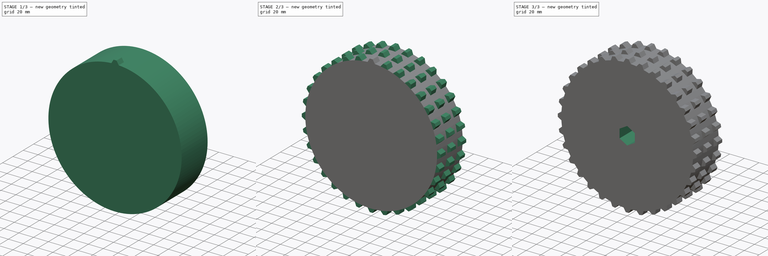
[diagram: build sequence overview — one tinted view per stage of 3, left to right]
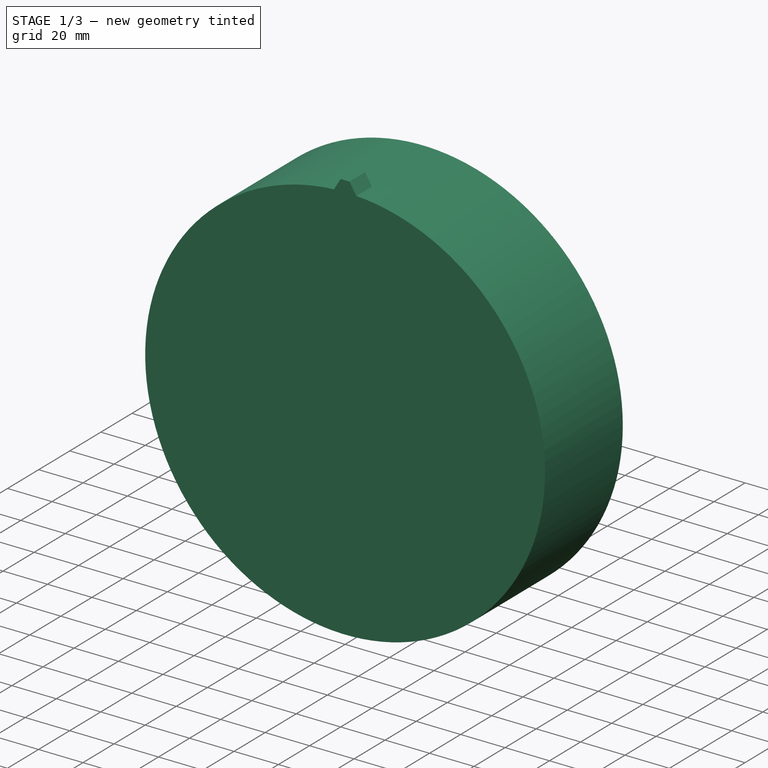
[diagram: stage 1 of 3 — iso view after this stage's code; geometry added in this stage tinted green]
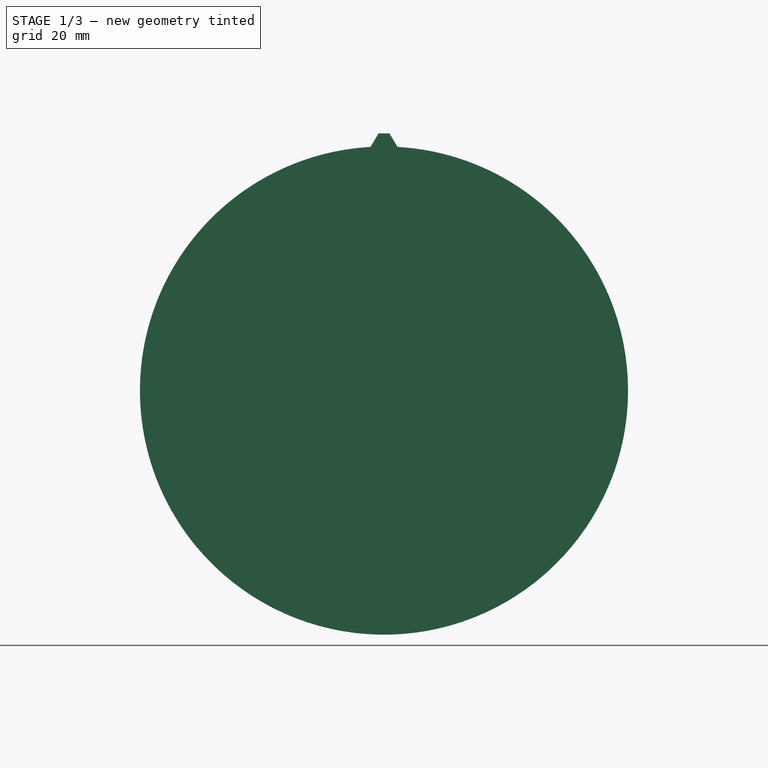
[diagram: stage 1 of 3 — front view after this stage's code; geometry added in this stage tinted green]
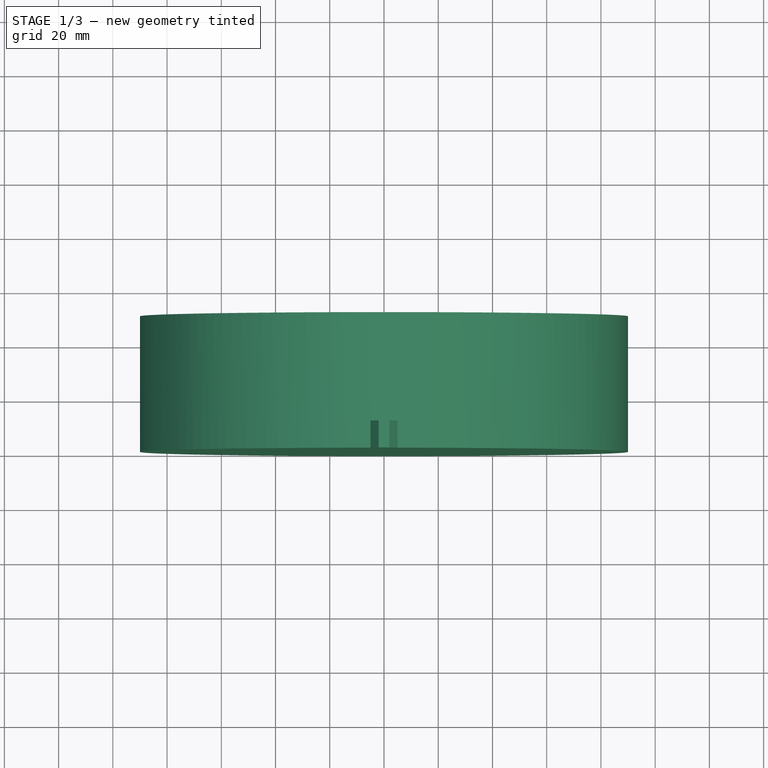
[diagram: stage 1 of 3 — top view after this stage's code; geometry added in this stage tinted green]
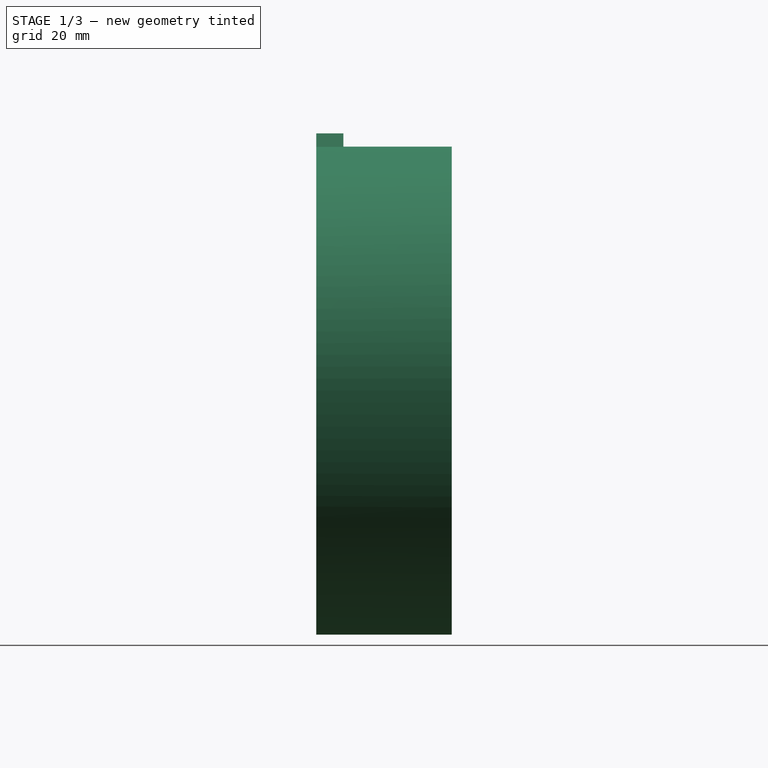
[diagram: stage 1 of 3 — right view after this stage's code; geometry added in this stage tinted green]
FCSTD DOCUMENT  (FreeCAD 0.18R16146 (Git))
Label: wheel copy
License: All rights reserved
LicenseURL: http://en.wikipedia.org/wiki/All_rights_reserved
objects: Sketcher::SketchObject×5, PartDesign::Pocket×3, PartDesign::PolarPattern×2, PartDesign::Revolution×1, PartDesign::Pad×1, PartDesign::LinearPattern×1, PartDesign::MultiTransform×1, PartDesign::Body×1
note: 20 computed .brp shape members not serialized (recipe doc carries the construction recipe); baked Part::Feature solids carry a one-line shape summary decoded from their .brp

FEATURE [Sketcher::SketchObject] Sketch
  MapMode = 5
  Support = -> [XY_Plane]
  sketch-geometry (4):
    g0: LineSegment StartX=0 StartY=0 StartZ=0 EndX=90 EndY=0 EndZ=0
    g1: LineSegment StartX=90 StartY=0 StartZ=0 EndX=90 EndY=50 EndZ=0
    g2: LineSegment StartX=90 StartY=50 StartZ=0 EndX=0 EndY=50 EndZ=0
    g3: LineSegment StartX=0 StartY=50 StartZ=0 EndX=0 EndY=0 EndZ=0
  constraints (11):
    c: Coincident(g0,g1)
    c: Coincident(g1,g2)
    c: Coincident(g2,g3)
    c: Coincident(g3,g0)
    c: Horizontal(g0)
    c: Horizontal(g2)
    c: Vertical(g1)
    c: Vertical(g3)
    c: Coincident(g0,g-1)
    c: DistanceX(g2,g2) = 90
    c: DistanceY(g3,g3) = 50
FEATURE [PartDesign::Revolution] Revolution
  Angle = 360
  Axis = (1e-16,1,-1e-16)
  Base = (0,0,0)
  Profile = -> Sketch
  ReferenceAxis = -> Y_Axis
  Reversed = true
FEATURE [Sketcher::SketchObject] Sketch001
  ExternalGeometry = -> [Revolution]
  MapMode = 5
  Placement = pos=(0,0,0) rot=(1,0,0;1.5708rad)
  Support = -> [Revolution]
  sketch-geometry (7):
    g0: LineSegment StartX=-5 StartY=86.861 StartZ=0 EndX=-5 EndY=89.861 EndZ=0
    g1: LineSegment StartX=-5 StartY=89.861 StartZ=0 EndX=-2 EndY=94.861 EndZ=0
    g2: LineSegment StartX=-2 StartY=94.861 StartZ=0 EndX=2 EndY=94.861 EndZ=0
    g3: LineSegment StartX=2 StartY=94.861 StartZ=0 EndX=5 EndY=89.861 EndZ=0
    g4: LineSegment StartX=5 StartY=89.861 StartZ=0 EndX=5 EndY=86.861 EndZ=0
    g5: LineSegment StartX=5 StartY=86.861 StartZ=0 EndX=-5 EndY=86.861 EndZ=0
    g6: LineSegment [constr] StartX=-5 StartY=89.861 StartZ=0 EndX=5 EndY=89.861 EndZ=0
  constraints (18):
    c: Coincident(g0,g1)
    c: Coincident(g1,g2)
    c: Coincident(g2,g3)
    c: Coincident(g3,g4)
    c: Coincident(g4,g5)
    c: Coincident(g5,g0)
    c: PointOnObject(g0,g-3)
    c: PointOnObject(g3,g-3)
    c: Distance(g6) = 10
    c: Coincident(g3,g6)
    c: Coincident(g0,g6)
    c: Parallel(g2,g6)
    c: Distance(g2) = 4
    c: Equal(g5,g6)
    c: Symmetric(g0,g4,g-2)
    c: Symmetric(g1,g2,g-2)
    c: DistanceY(g0,g1) = 5
    c: DistanceY(g0,g0) = 3
FEATURE [PartDesign::Pad] Pad
  BaseFeature = -> Revolution
  Length = 10
  Length2 = 100
  Profile = -> Sketch001
  Reversed = true
  Type = 0
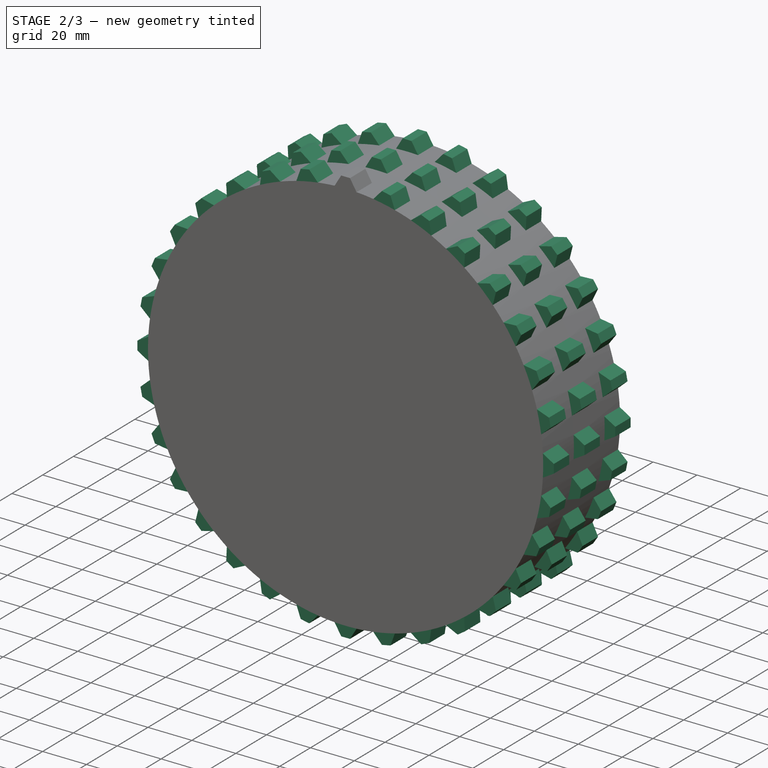
[diagram: stage 2 of 3 — iso view after this stage's code; geometry added in this stage tinted green]
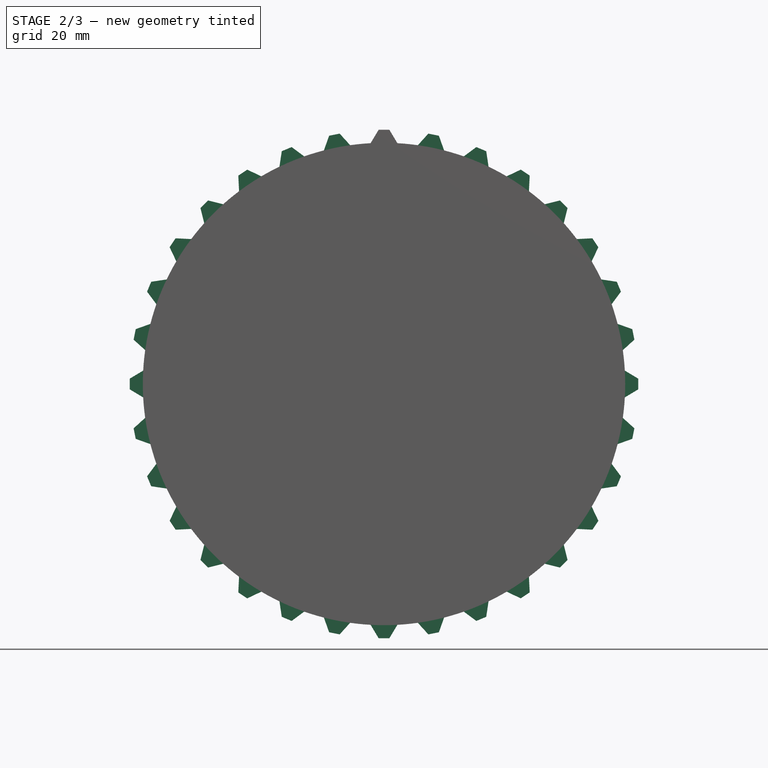
[diagram: stage 2 of 3 — front view after this stage's code; geometry added in this stage tinted green]
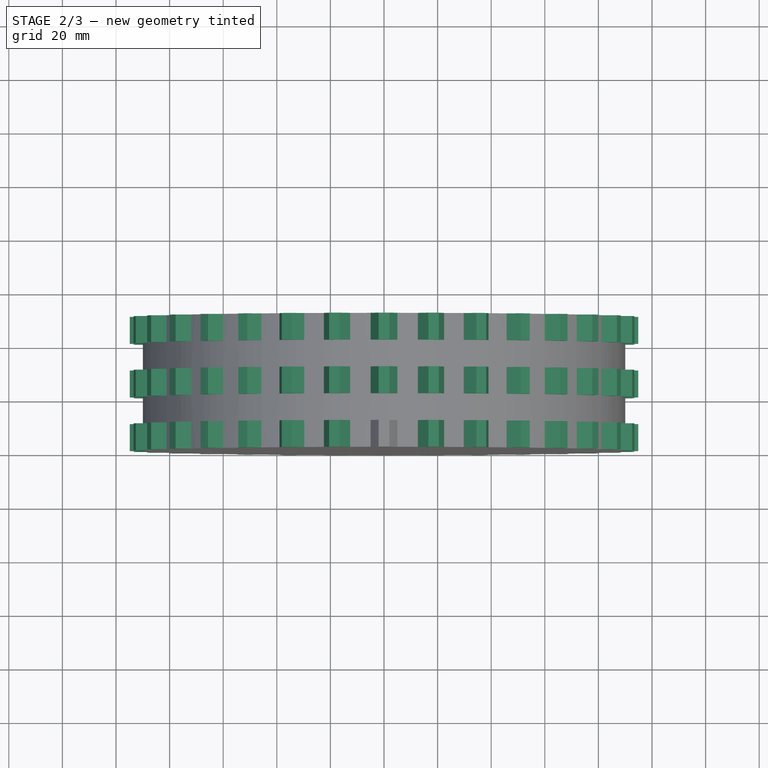
[diagram: stage 2 of 3 — top view after this stage's code; geometry added in this stage tinted green]
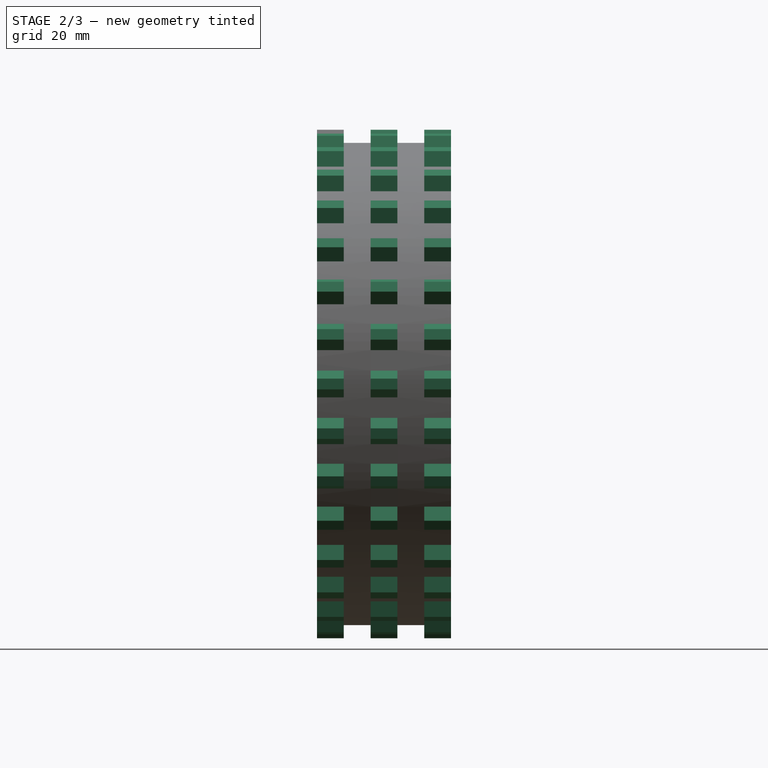
[diagram: stage 2 of 3 — right view after this stage's code; geometry added in this stage tinted green]
FEATURE [PartDesign::PolarPattern] PolarPattern
  Angle = 360
  Axis = -> Sketch001 [N_Axis]
  Occurrences = 32
FEATURE [PartDesign::LinearPattern] LinearPattern
  Direction = -> Y_Axis
  Length = 40
  Occurrences = 3
FEATURE [PartDesign::MultiTransform] MultiTransform
  BaseFeature = -> Pad
  Originals = -> [Pad]
  Transformations = -> [PolarPattern,LinearPattern]
FEATURE [Sketcher::SketchObject] Sketch003  label="felghull"
  MapMode = 5
  Placement = pos=(6e-15,50,-6e-15) rot=(0,0.707107,0.707107;3.14159rad)
  sketch-geometry (4):
    g0: ArcOfCircle CenterX=0 CenterY=0 CenterZ=0 NormalX=0 NormalY=0 NormalZ=1 AngleXU=0 Radius=70 StartAngle=1.09083 EndAngle=2.05076
    g1: ArcOfCircle CenterX=0 CenterY=0 CenterZ=0 NormalX=0 NormalY=0 NormalZ=1 AngleXU=0 Radius=20 StartAngle=1.09083 EndAngle=2.05076
    g2: LineSegment StartX=-32.3224 StartY=62.0908 StartZ=0 EndX=-9.23497 EndY=17.7402 EndZ=0
    g3: LineSegment StartX=9.23497 StartY=17.7402 StartZ=0 EndX=32.3224 EndY=62.0908 EndZ=0
  constraints (13):
    c: Coincident(g1,g-1)
    c: Coincident(g0,g1)
    c: Coincident(g0,g3)
    c: Coincident(g1,g3)
    c: Coincident(g1,g2)
    c: Coincident(g0,g2)
    c: Equal(g3,g2)
    c: Radius(g0) = 70
    c: Radius(g1) = 20
    c: Angle(g1) = 0.959931
    c: Angle(g0) = 0.959931
    c: Symmetric(g0,g0,g-2)
    c: Symmetric(g1,g1,g-2)
FEATURE [PartDesign::Pocket] Pocket
  BaseFeature = -> MultiTransform
  Length = 45
  Length2 = 100
  Profile = -> Sketch003
  Type = 0
FEATURE [PartDesign::PolarPattern] PolarPattern001
  Angle = 360
  Axis = -> Sketch003 [N_Axis]
  BaseFeature = -> Pocket
  Occurrences = 5
  Originals = -> [Pocket]
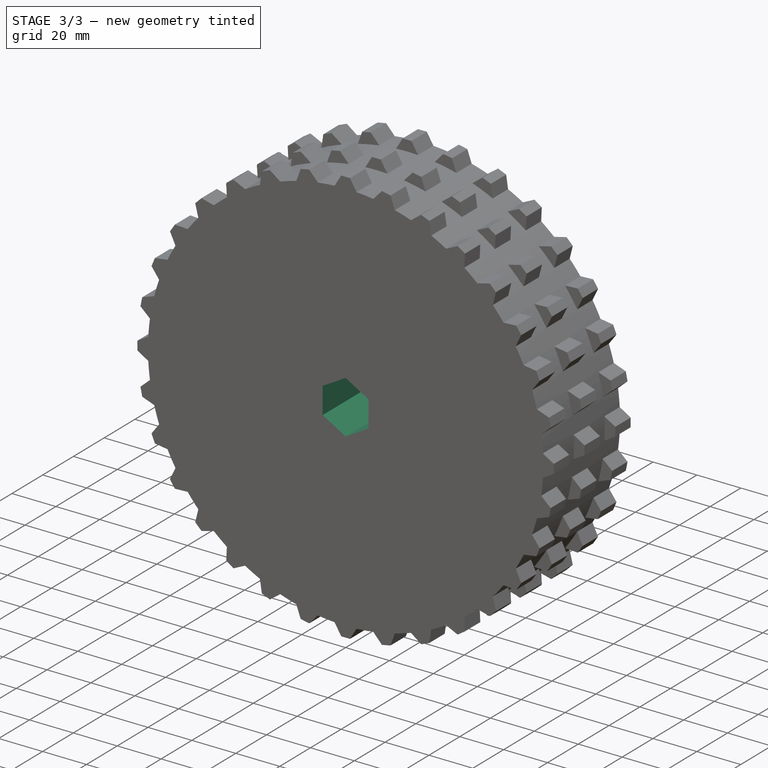
[diagram: stage 3 of 3 — iso view after this stage's code; geometry added in this stage tinted green]
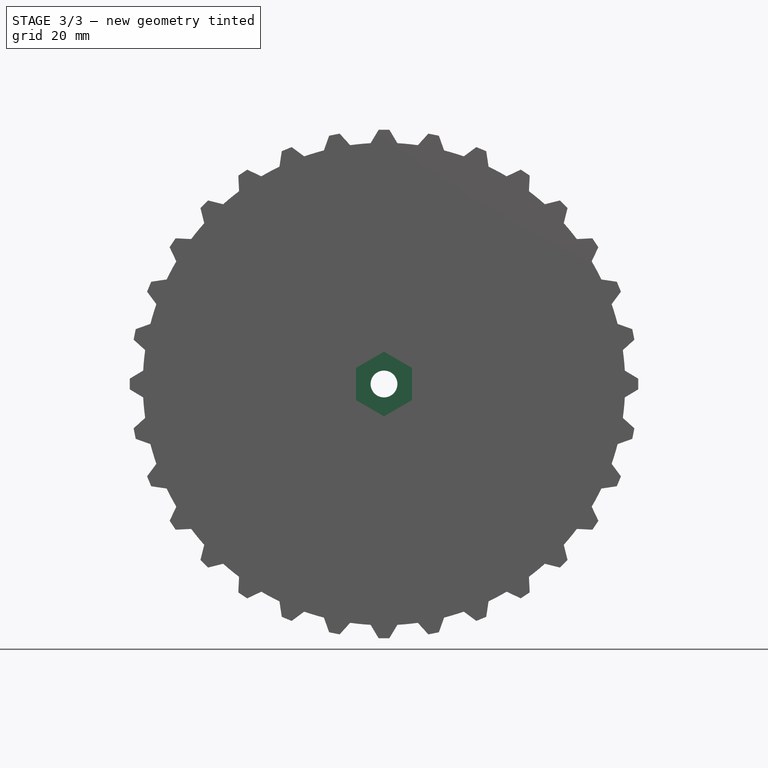
[diagram: stage 3 of 3 — front view after this stage's code; geometry added in this stage tinted green]
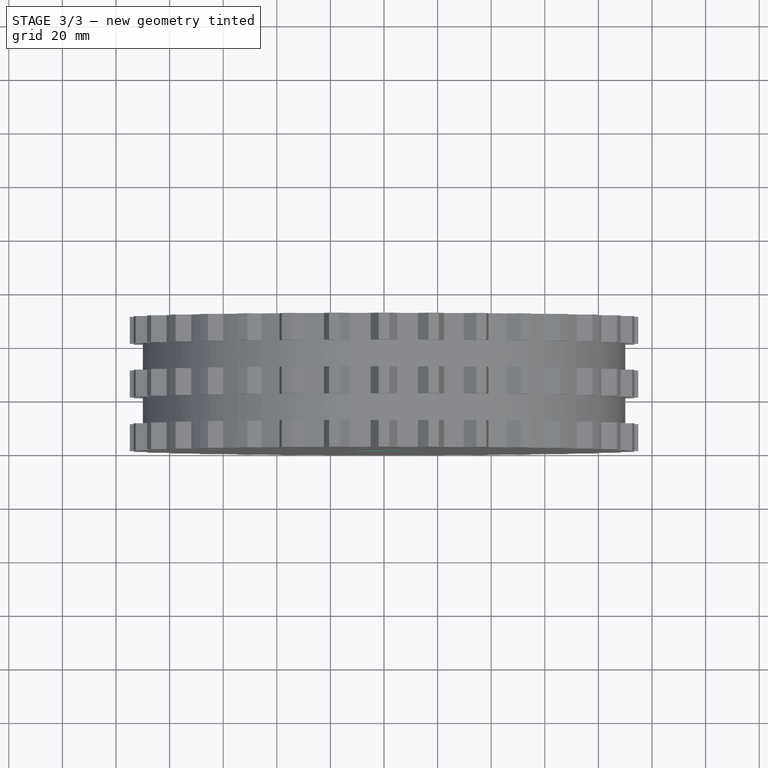
[diagram: stage 3 of 3 — top view after this stage's code; geometry added in this stage tinted green]
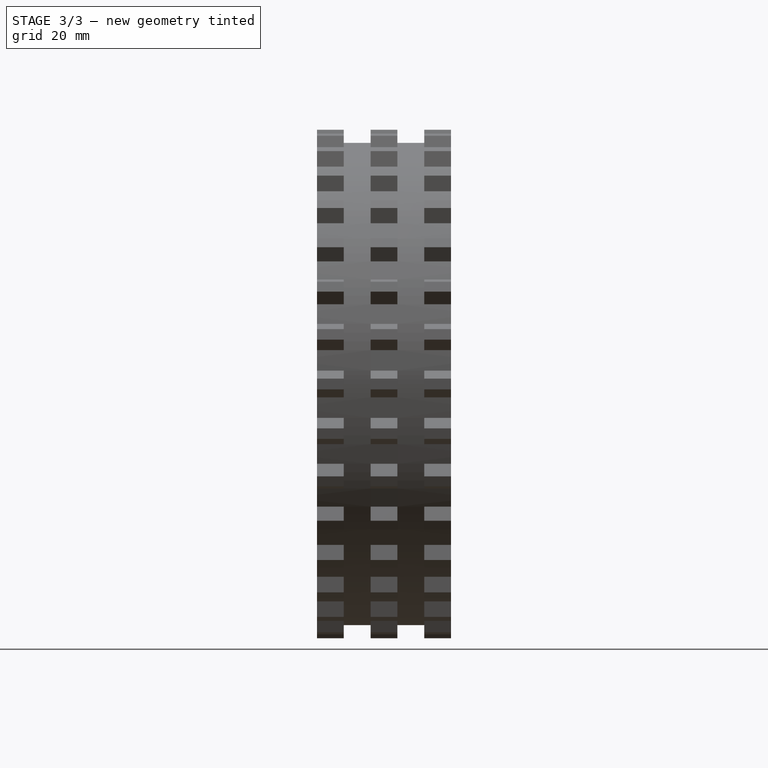
[diagram: stage 3 of 3 — right view after this stage's code; geometry added in this stage tinted green]
FEATURE [Sketcher::SketchObject] CopySketch004
  Placement = pos=(0,0,0) rot=(1,0,0;1.5708rad)
  sketch-geometry (7):
    g0: LineSegment StartX=-1.8e-15 StartY=12.05 StartZ=0 EndX=-10.4356 EndY=6.025 EndZ=0
    g1: LineSegment StartX=-10.4356 StartY=6.025 StartZ=0 EndX=-10.4356 EndY=-6.025 EndZ=0
    g2: LineSegment StartX=-10.4356 StartY=-6.025 StartZ=0 EndX=0 EndY=-12.05 EndZ=0
    g3: LineSegment StartX=0 StartY=-12.05 StartZ=0 EndX=10.4356 EndY=-6.025 EndZ=0
    g4: LineSegment StartX=10.4356 StartY=-6.025 StartZ=0 EndX=10.4356 EndY=6.025 EndZ=0
    g5: LineSegment StartX=10.4356 StartY=6.025 StartZ=0 EndX=-1.8e-15 EndY=12.05 EndZ=0
    g6: Circle [constr] CenterX=0 CenterY=0 CenterZ=0 NormalX=0 NormalY=0 NormalZ=1 AngleXU=0 Radius=12.05
  constraints (16):
    c: Coincident(g0,g1)
    c: Coincident(g1,g2)
    c: Coincident(g2,g3)
    c: Coincident(g3,g4)
    c: Coincident(g4,g5)
    c: Coincident(g5,g0)
    c: Equal(g0, g1-g5) x5
    c: PointOnObject(g0,g6)
    c: PointOnObject(g1,g6)
    c: PointOnObject(g2,g6)
    c: PointOnObject(g3,g6)
    c: PointOnObject(g4,g6)
    c: PointOnObject(g5,g6)
    c: Coincident(g6,g-1)
    c: Distance(g-1,g0) = 12.05
    c: Vertical(g4)
FEATURE [PartDesign::Pocket] Pocket001  label="hex-hull"
  BaseFeature = -> PolarPattern001
  Length = 40
  Length2 = 100
  Profile = -> CopySketch004
  Type = 0
FEATURE [Sketcher::SketchObject] Sketch004
  MapMode = 5
  Placement = pos=(5.6e-15,50,-5.6e-15) rot=(0,0.707107,0.707107;3.14159rad)
  Support = -> [Pocket001]
  sketch-geometry (1):
    g0: Circle CenterX=0 CenterY=0 CenterZ=0 NormalX=0 NormalY=0 NormalZ=1 AngleXU=0 Radius=5
  constraints (2):
    c: Coincident(g0,g-1)
    c: Radius(g0) = 5
FEATURE [PartDesign::Pocket] Pocket002  label="skruehull"
  BaseFeature = -> Pocket001
  Length = 5
  Length2 = 100
  Profile = -> Sketch004
  Type = 1
FEATURE [PartDesign::Body] Body  label="wheel"
  Group = -> [Sketch,Revolution,Sketch001,Pad,MultiTransform,PolarPattern,LinearPattern,Sketch003,Pocket,PolarPattern001,Pocket001,CopySketch004,Sketch004,Pocket002]
  Origin = -> Origin
  Placement = pos=(0,0,0) rot=(0,1,0;0.523599rad)
  Tip = -> Pocket002
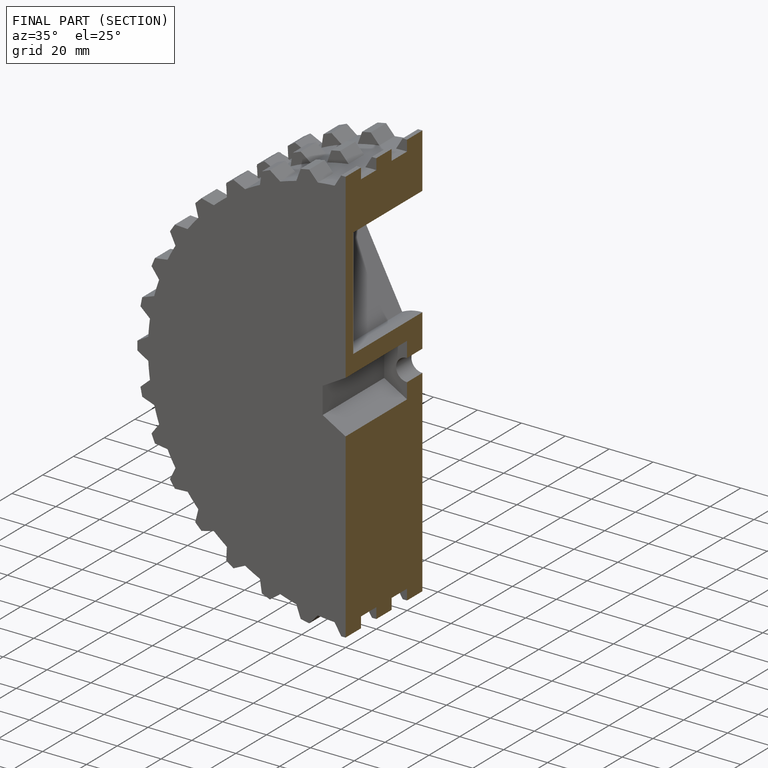
[diagram: finished part — half-section view (interior)]
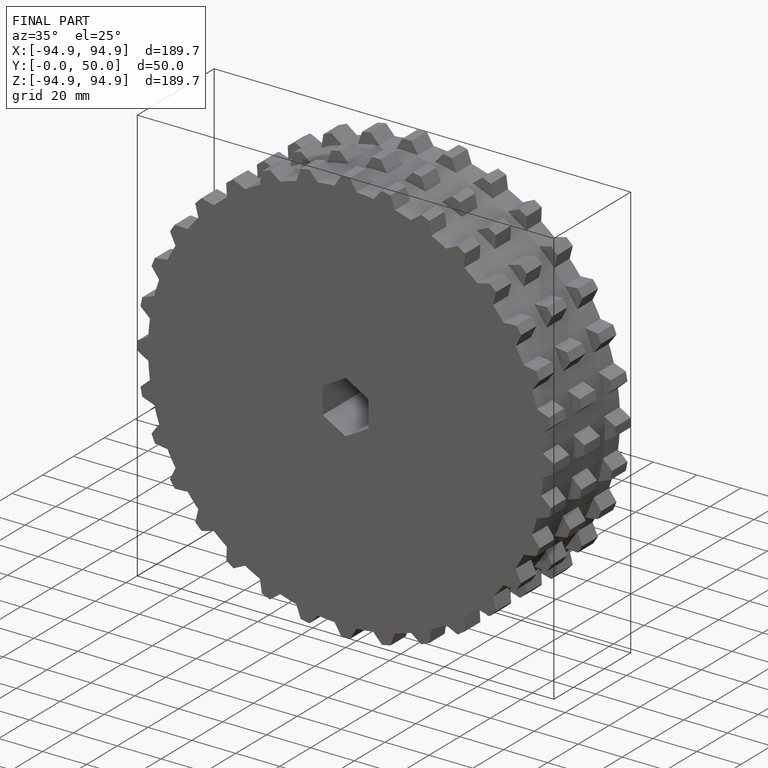
[diagram: finished part — iso view with bounding-box wireframe]
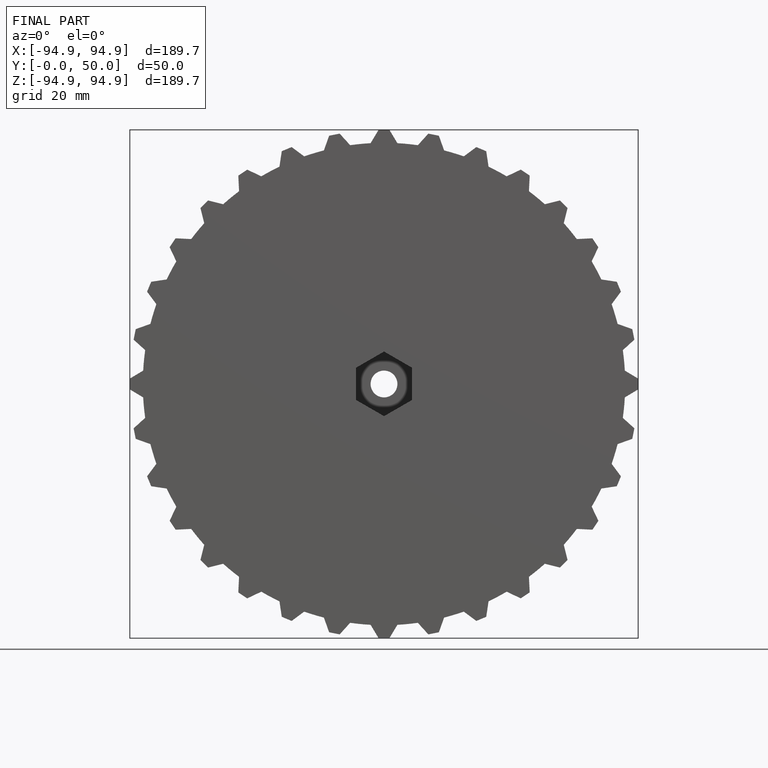
[diagram: finished part — front view with bounding-box wireframe]
